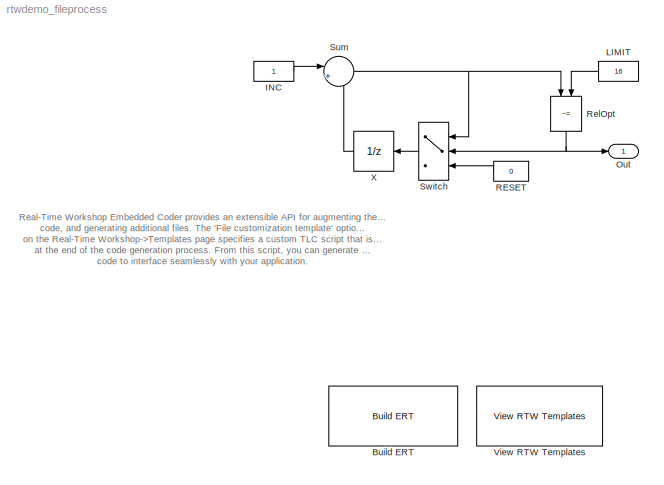
MODEL rtwdemo_fileprocess
KIND model
BLOCK [Reference] Build ERT  REF=rtwdemowidgets/Build ERT
  Ports = []
  ShowPortLabels = on
  SourceBlock = rtwdemowidgets/Build ERT
  attrib_overrides = {'GenerateSampleERTMain','GenCodeOnly','ERTCustomFileTemplate','MultiInstanceERTCode'}
BLOCK [Constant] INC
  OutDataTypeMode = uint8
BLOCK [Constant] LIMIT
  OutDataTypeMode = uint8
  Value = 16
BLOCK [Outport] Out
  BusOutputAsStruct = off
  IconDisplay = Port number
BLOCK [Constant] RESET
  OutDataTypeMode = uint8
  Value = 0
BLOCK [RelationalOperator] RelOpt
  Operator = ~=
BLOCK [Sum] Sum
  IconShape = round
  Inputs = |++
  Ports = [2, 1]
  SaturateOnIntegerOverflow = off
BLOCK [Switch] Switch
  Threshold = .5
BLOCK [Reference] View RTW Templates  REF=rtwdemowidgets/View RTW Templates
  Ports = []
  ShowPortLabels = on
  SourceBlock = rtwdemowidgets/View RTW Templates
BLOCK [UnitDelay] X
  StateIdentifier = X
ANNOTATION (root): Real-Time Workshop Embedded Coder provides an extensible API for augmenting the generated\ncode, and generating additional files. The 'File customization template' option located\non the Real-Time Workshop->Templates page specifies a custom TLC script that is executed\nat the end of the code generation process. From this script, you can generate additional\ncode to interface seamlessly with your a...<+277ch>
LINE INC:1 -> Sum:1
LINE LIMIT:1 -> RelOpt:2
LINE RESET:1 -> Switch:3
NET RelOpt:1 -> Out:1, Switch:2
NET Sum:1 -> RelOpt:1, Switch:1
LINE Switch:1 -> X:1
LINE X:1 -> Sum:2
note: NET lines group one-source signal fan-out (src -> all destinations, sorted); 1:1 wires keep LINE
